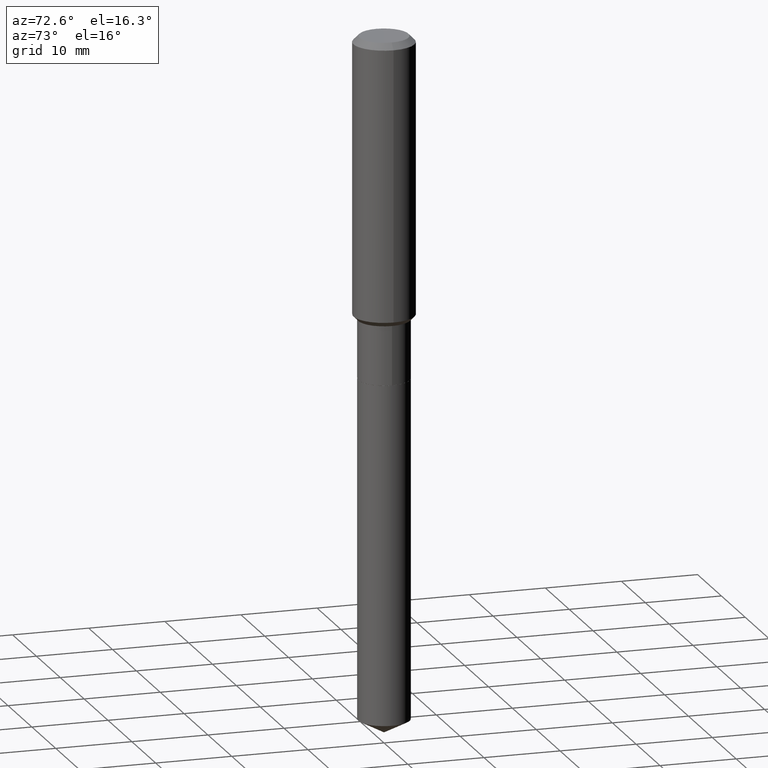
[diagram: clean part render]
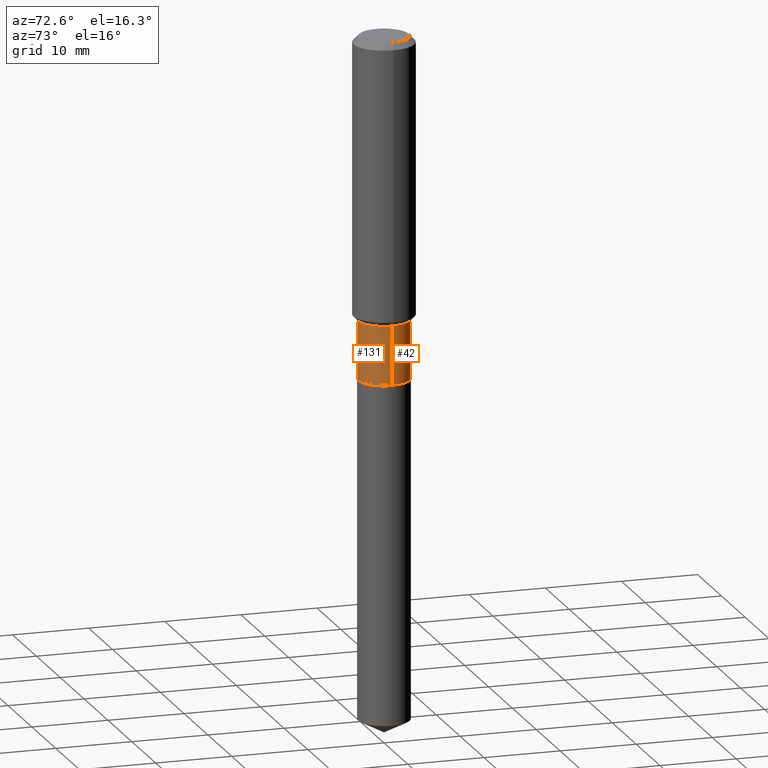
[diagram: same view with one multi-face feature highlighted, each face labeled with its STEP entity id]
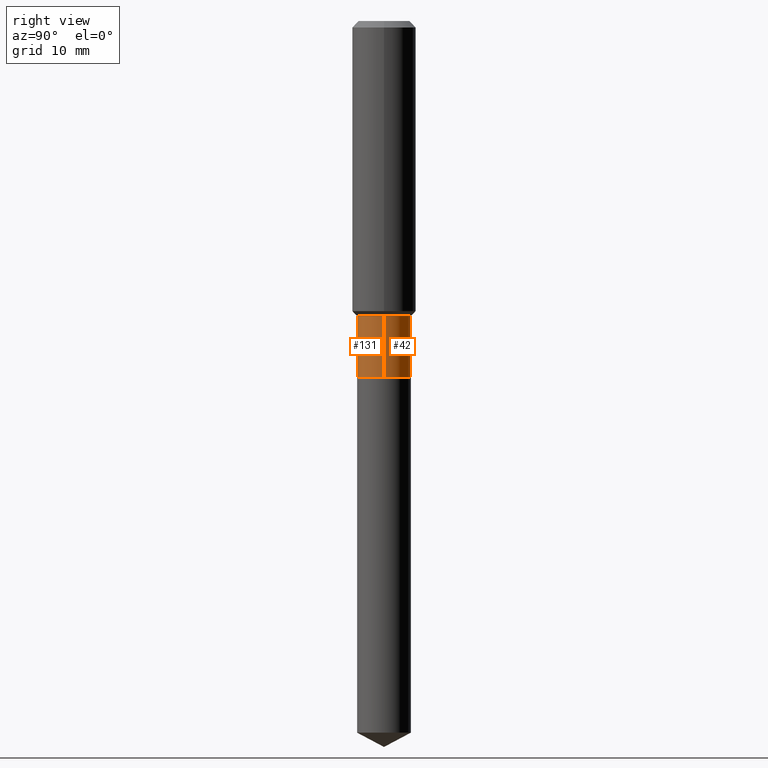
[diagram: same view with one multi-face feature highlighted, each face labeled with its STEP entity id]
A machine part, auxiliary view. The highlighted faces form ONE feature: a constant-radius fillet chain: 2 tangent blend faces with common blend radius 3.3731 mm. The faces share edges in the B-rep.
A second angle (right view) of the same feature is appended — it is thin or edge-on in the first view.
Their STEP definitions:
[1] entity #131 (Cylinder):
#10 = VECTOR ( 'NONE', #205, 39.37007874015748143 ) ;
#19 = DIRECTION ( 'NONE',  ( 1.000000000000000000, -6.982962677686266711E-15, 4.876176775795936353E-29 ) ) ;
#26 = DIRECTION ( 'NONE',  ( -2.445468806185136597E-29, 3.491481338843145583E-15, 1.000000000000000000 ) ) ;
#36 = EDGE_CURVE ( 'NONE', #333, #321, #40, .T. ) ;
#37 = CARTESIAN_POINT ( 'NONE',  ( -0.1328000000000000014, -4.672970702640613031E-15, -1.761099999999999888 ) ) ;
#40 = CIRCLE ( 'NONE', #343, 0.1328000000000000014 ) ;
#48 = CARTESIAN_POINT ( 'NONE',  ( 4.306715114572644417E-29, -6.148847785836663628E-15, -1.761099999999999888 ) ) ;
#67 = VERTEX_POINT ( 'NONE', #462 ) ;
#76 = CARTESIAN_POINT ( 'NONE',  ( 0.1328000000000000014, -7.076185229433399456E-15, -1.761099999999999888 ) ) ;
#97 = CARTESIAN_POINT ( 'NONE',  ( 0.000000000000000000, 0.000000000000000000, 0.000000000000000000 ) ) ;
#118 = AXIS2_PLACEMENT_3D ( 'NONE', #254, #26, #437 ) ;
#126 = EDGE_LOOP ( 'NONE', ( #230, #190, #154, #312 ) ) ;
#131 = ADVANCED_FACE ( 'NONE', ( #250 ), #297, .T. ) ;
#141 = DIRECTION ( 'NONE',  ( -2.445468806185136597E-29, 3.491481338843145583E-15, 1.000000000000000000 ) ) ;
#154 = ORIENTED_EDGE ( 'NONE', *, *, #185, .T. ) ;
#185 = EDGE_CURVE ( 'NONE', #321, #376, #474, .T. ) ;
#190 = ORIENTED_EDGE ( 'NONE', *, *, #36, .T. ) ;
#198 = DIRECTION ( 'NONE',  ( -2.445468806185136597E-29, 3.491481338843145583E-15, 1.000000000000000000 ) ) ;
#200 = EDGE_CURVE ( 'NONE', #67, #376, #394, .T. ) ;
#205 = DIRECTION ( 'NONE',  ( -2.445468806185136877E-29, 3.491481338843145188E-15, 1.000000000000000000 ) ) ;
#230 = ORIENTED_EDGE ( 'NONE', *, *, #481, .F. ) ;
#232 = LINE ( 'NONE', #387, #445 ) ;
#250 = FACE_OUTER_BOUND ( 'NONE', #126, .T. ) ;
#254 = CARTESIAN_POINT ( 'NONE',  ( 3.561091675566796113E-29, -5.084295125623389731E-15, -1.456200000000000161 ) ) ;
#261 = CARTESIAN_POINT ( 'NONE',  ( 0.1327999999999999736, -6.011632569220125559E-15, -1.456200000000000161 ) ) ;
#297 = CYLINDRICAL_SURFACE ( 'NONE', #469, 0.1327999999999999736 ) ;
#312 = ORIENTED_EDGE ( 'NONE', *, *, #200, .F. ) ;
#321 = VERTEX_POINT ( 'NONE', #76 ) ;
#333 = VERTEX_POINT ( 'NONE', #37 ) ;
#343 = AXIS2_PLACEMENT_3D ( 'NONE', #48, #198, #386 ) ;
#350 = DIRECTION ( 'NONE',  ( -2.445468806185136877E-29, 3.491481338843145188E-15, 1.000000000000000000 ) ) ;
#366 = CARTESIAN_POINT ( 'NONE',  ( 0.1327999999999999736, -9.273374435967360251E-16, 6.475562758257002307E-30 ) ) ;
#376 = VERTEX_POINT ( 'NONE', #261 ) ;
#386 = DIRECTION ( 'NONE',  ( 1.000000000000000000, -6.982962677686263555E-15, 0.000000000000000000 ) ) ;
#387 = CARTESIAN_POINT ( 'NONE',  ( -0.1327999999999999736, 9.436007530894128594E-16, -6.532345799858513932E-30 ) ) ;
#394 = CIRCLE ( 'NONE', #118, 0.1327999999999999736 ) ;
#437 = DIRECTION ( 'NONE',  ( 1.000000000000000000, -6.982962677686265133E-15, 0.000000000000000000 ) ) ;
#445 = VECTOR ( 'NONE', #350, 39.37007874015748143 ) ;
#462 = CARTESIAN_POINT ( 'NONE',  ( -0.1327999999999999736, -4.672970702640613031E-15, -1.456200000000000161 ) ) ;
#469 = AXIS2_PLACEMENT_3D ( 'NONE', #97, #141, #19 ) ;
#474 = LINE ( 'NONE', #366, #10 ) ;
#481 = EDGE_CURVE ( 'NONE', #333, #67, #232, .T. ) ;
[2] entity #42 (Cylinder):
#10 = VECTOR ( 'NONE', #205, 39.37007874015748143 ) ;
#28 = ORIENTED_EDGE ( 'NONE', *, *, #111, .F. ) ;
#37 = CARTESIAN_POINT ( 'NONE',  ( -0.1328000000000000014, -4.672970702640613031E-15, -1.761099999999999888 ) ) ;
#42 = ADVANCED_FACE ( 'NONE', ( #44 ), #155, .T. ) ;
#44 = FACE_OUTER_BOUND ( 'NONE', #384, .T. ) ;
#53 = DIRECTION ( 'NONE',  ( 1.000000000000000000, -6.982962677686265133E-15, 0.000000000000000000 ) ) ;
#67 = VERTEX_POINT ( 'NONE', #462 ) ;
#76 = CARTESIAN_POINT ( 'NONE',  ( 0.1328000000000000014, -7.076185229433399456E-15, -1.761099999999999888 ) ) ;
#111 = EDGE_CURVE ( 'NONE', #376, #67, #357, .T. ) ;
#155 = CYLINDRICAL_SURFACE ( 'NONE', #391, 0.1327999999999999736 ) ;
#163 = DIRECTION ( 'NONE',  ( -2.445468806185136597E-29, 3.491481338843145583E-15, 1.000000000000000000 ) ) ;
#176 = ORIENTED_EDGE ( 'NONE', *, *, #481, .T. ) ;
#185 = EDGE_CURVE ( 'NONE', #321, #376, #474, .T. ) ;
#187 = DIRECTION ( 'NONE',  ( 1.000000000000000000, -6.982962677686263555E-15, 0.000000000000000000 ) ) ;
#205 = DIRECTION ( 'NONE',  ( -2.445468806185136877E-29, 3.491481338843145188E-15, 1.000000000000000000 ) ) ;
#232 = LINE ( 'NONE', #387, #445 ) ;
#239 = CARTESIAN_POINT ( 'NONE',  ( 3.561091675566796113E-29, -5.084295125623389731E-15, -1.456200000000000161 ) ) ;
#261 = CARTESIAN_POINT ( 'NONE',  ( 0.1327999999999999736, -6.011632569220125559E-15, -1.456200000000000161 ) ) ;
#265 = DIRECTION ( 'NONE',  ( -2.445468806185136597E-29, 3.491481338843145583E-15, 1.000000000000000000 ) ) ;
#274 = CARTESIAN_POINT ( 'NONE',  ( 0.000000000000000000, 0.000000000000000000, 0.000000000000000000 ) ) ;
#279 = DIRECTION ( 'NONE',  ( 1.000000000000000000, -6.982962677686266711E-15, 4.876176775795936353E-29 ) ) ;
#293 = EDGE_CURVE ( 'NONE', #321, #333, #327, .T. ) ;
#321 = VERTEX_POINT ( 'NONE', #76 ) ;
#327 = CIRCLE ( 'NONE', #398, 0.1328000000000000014 ) ;
#333 = VERTEX_POINT ( 'NONE', #37 ) ;
#344 = AXIS2_PLACEMENT_3D ( 'NONE', #239, #395, #53 ) ;
#350 = DIRECTION ( 'NONE',  ( -2.445468806185136877E-29, 3.491481338843145188E-15, 1.000000000000000000 ) ) ;
#357 = CIRCLE ( 'NONE', #344, 0.1327999999999999736 ) ;
#366 = CARTESIAN_POINT ( 'NONE',  ( 0.1327999999999999736, -9.273374435967360251E-16, 6.475562758257002307E-30 ) ) ;
#376 = VERTEX_POINT ( 'NONE', #261 ) ;
#384 = EDGE_LOOP ( 'NONE', ( #467, #176, #28, #452 ) ) ;
#387 = CARTESIAN_POINT ( 'NONE',  ( -0.1327999999999999736, 9.436007530894128594E-16, -6.532345799858513932E-30 ) ) ;
#391 = AXIS2_PLACEMENT_3D ( 'NONE', #274, #163, #279 ) ;
#395 = DIRECTION ( 'NONE',  ( -2.445468806185136597E-29, 3.491481338843145583E-15, 1.000000000000000000 ) ) ;
#398 = AXIS2_PLACEMENT_3D ( 'NONE', #457, #265, #187 ) ;
#445 = VECTOR ( 'NONE', #350, 39.37007874015748143 ) ;
#452 = ORIENTED_EDGE ( 'NONE', *, *, #185, .F. ) ;
#457 = CARTESIAN_POINT ( 'NONE',  ( 4.306715114572644417E-29, -6.148847785836663628E-15, -1.761099999999999888 ) ) ;
#462 = CARTESIAN_POINT ( 'NONE',  ( -0.1327999999999999736, -4.672970702640613031E-15, -1.456200000000000161 ) ) ;
#467 = ORIENTED_EDGE ( 'NONE', *, *, #293, .T. ) ;
#474 = LINE ( 'NONE', #366, #10 ) ;
#481 = EDGE_CURVE ( 'NONE', #333, #67, #232, .T. ) ;